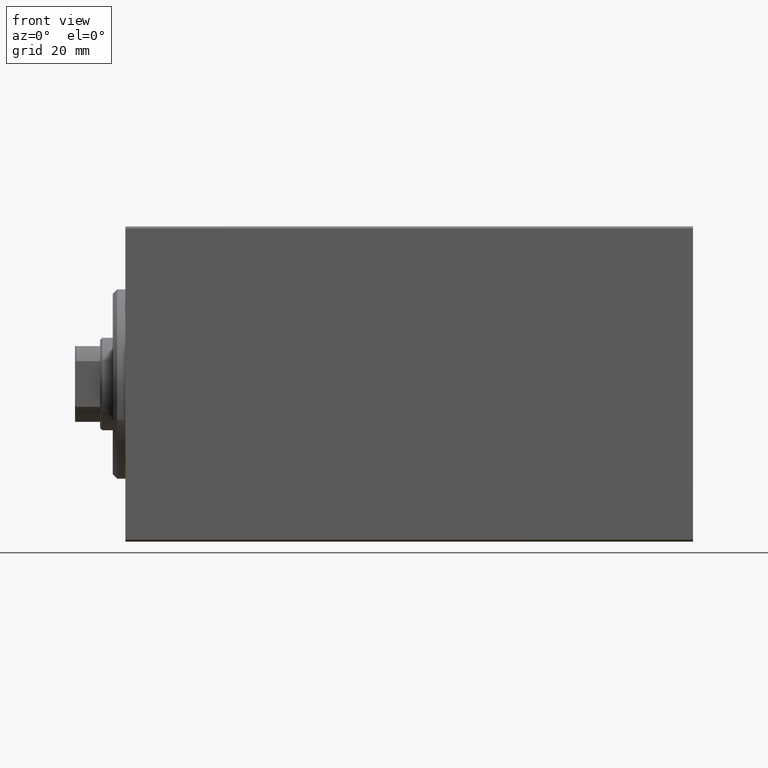
[diagram: clean part render]
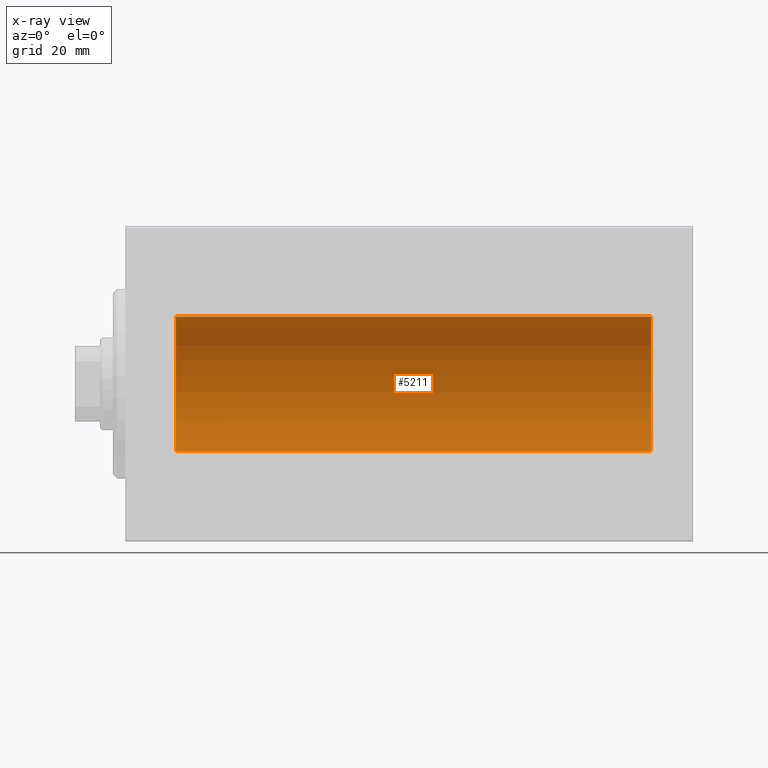
[diagram: x-ray — body ghosted, one internal face saturated and labeled with its STEP entity id]
A machine part, front view, then the same camera in x-ray: the body is ghosted and one INTERNAL B-rep face — a face not visible from any outside direction — is saturated and labeled: STEP entity #5211.
In plain terms, the highlighted cylindrical surface (partial cylindrical patch) has radius 16 mm, axis along (-1, -0, -0).
Its self-contained STEP definition (entity closure, byte-faithful):
#1887 = VERTEX_POINT ( 'NONE', #28364 ) ;
#5211 = ADVANCED_FACE ( 'NONE', ( #42287 ), #36096, .F. ) ;
#5384 = CIRCLE ( 'NONE', #34925, 16.00000000000000000 ) ;
#6071 = EDGE_LOOP ( 'NONE', ( #13313, #41563, #34448, #29949 ) ) ;
#7297 = VERTEX_POINT ( 'NONE', #33518 ) ;
#8309 = LINE ( 'NONE', #18008, #41261 ) ;
#9274 = EDGE_CURVE ( 'NONE', #34837, #22244, #32334, .T. ) ;
#10564 = DIRECTION ( 'NONE',  ( 0.000000000000000000, 0.000000000000000000, 1.000000000000000000 ) ) ;
#13222 = EDGE_CURVE ( 'NONE', #34837, #7297, #5384, .T. ) ;
#13313 = ORIENTED_EDGE ( 'NONE', *, *, #13605, .F. ) ;
#13605 = EDGE_CURVE ( 'NONE', #7297, #1887, #8309, .T. ) ;
#15800 = DIRECTION ( 'NONE',  ( -1.000000000000000000, -0.000000000000000000, -0.000000000000000000 ) ) ;
#16047 = AXIS2_PLACEMENT_3D ( 'NONE', #20914, #21125, #10564 ) ;
#18008 = CARTESIAN_POINT ( 'NONE',  ( 125.0000000000000000, 1.959434878635765131E-15, -16.00000000000000000 ) ) ;
#18228 = DIRECTION ( 'NONE',  ( -1.000000000000000000, -0.000000000000000000, -0.000000000000000000 ) ) ;
#18474 = CARTESIAN_POINT ( 'NONE',  ( 125.0000000000000000, 0.000000000000000000, 16.00000000000000000 ) ) ;
#18898 = CIRCLE ( 'NONE', #16047, 16.00000000000000000 ) ;
#19329 = VECTOR ( 'NONE', #15800, 1000.000000000000000 ) ;
#19368 = DIRECTION ( 'NONE',  ( 0.000000000000000000, 0.000000000000000000, 1.000000000000000000 ) ) ;
#20914 = CARTESIAN_POINT ( 'NONE',  ( 11.99999999999999645, 0.000000000000000000, 0.000000000000000000 ) ) ;
#21125 = DIRECTION ( 'NONE',  ( -1.000000000000000000, 0.000000000000000000, 0.000000000000000000 ) ) ;
#22244 = VERTEX_POINT ( 'NONE', #42538 ) ;
#25515 = DIRECTION ( 'NONE',  ( -1.000000000000000000, 0.000000000000000000, 0.000000000000000000 ) ) ;
#28364 = CARTESIAN_POINT ( 'NONE',  ( 11.99999999999999645, 1.959434878635765131E-15, -16.00000000000000000 ) ) ;
#28390 = CARTESIAN_POINT ( 'NONE',  ( 125.0000000000000000, 0.000000000000000000, 0.000000000000000000 ) ) ;
#28641 = DIRECTION ( 'NONE',  ( -1.000000000000000000, -0.000000000000000000, -0.000000000000000000 ) ) ;
#29949 = ORIENTED_EDGE ( 'NONE', *, *, #36438, .T. ) ;
#32334 = LINE ( 'NONE', #39363, #19329 ) ;
#33422 = AXIS2_PLACEMENT_3D ( 'NONE', #42503, #28641, #19368 ) ;
#33518 = CARTESIAN_POINT ( 'NONE',  ( 125.0000000000000000, 1.959434878635765131E-15, -16.00000000000000000 ) ) ;
#34448 = ORIENTED_EDGE ( 'NONE', *, *, #9274, .T. ) ;
#34837 = VERTEX_POINT ( 'NONE', #18474 ) ;
#34925 = AXIS2_PLACEMENT_3D ( 'NONE', #28390, #25515, #38522 ) ;
#36096 = CYLINDRICAL_SURFACE ( 'NONE', #33422, 16.00000000000000000 ) ;
#36438 = EDGE_CURVE ( 'NONE', #22244, #1887, #18898, .T. ) ;
#38522 = DIRECTION ( 'NONE',  ( 0.000000000000000000, 0.000000000000000000, 1.000000000000000000 ) ) ;
#39363 = CARTESIAN_POINT ( 'NONE',  ( 125.0000000000000000, 0.000000000000000000, 16.00000000000000000 ) ) ;
#41261 = VECTOR ( 'NONE', #18228, 1000.000000000000000 ) ;
#41563 = ORIENTED_EDGE ( 'NONE', *, *, #13222, .F. ) ;
#42287 = FACE_OUTER_BOUND ( 'NONE', #6071, .T. ) ;
#42503 = CARTESIAN_POINT ( 'NONE',  ( 125.0000000000000000, 0.000000000000000000, 0.000000000000000000 ) ) ;
#42538 = CARTESIAN_POINT ( 'NONE',  ( 11.99999999999999645, 0.000000000000000000, 16.00000000000000000 ) ) ;